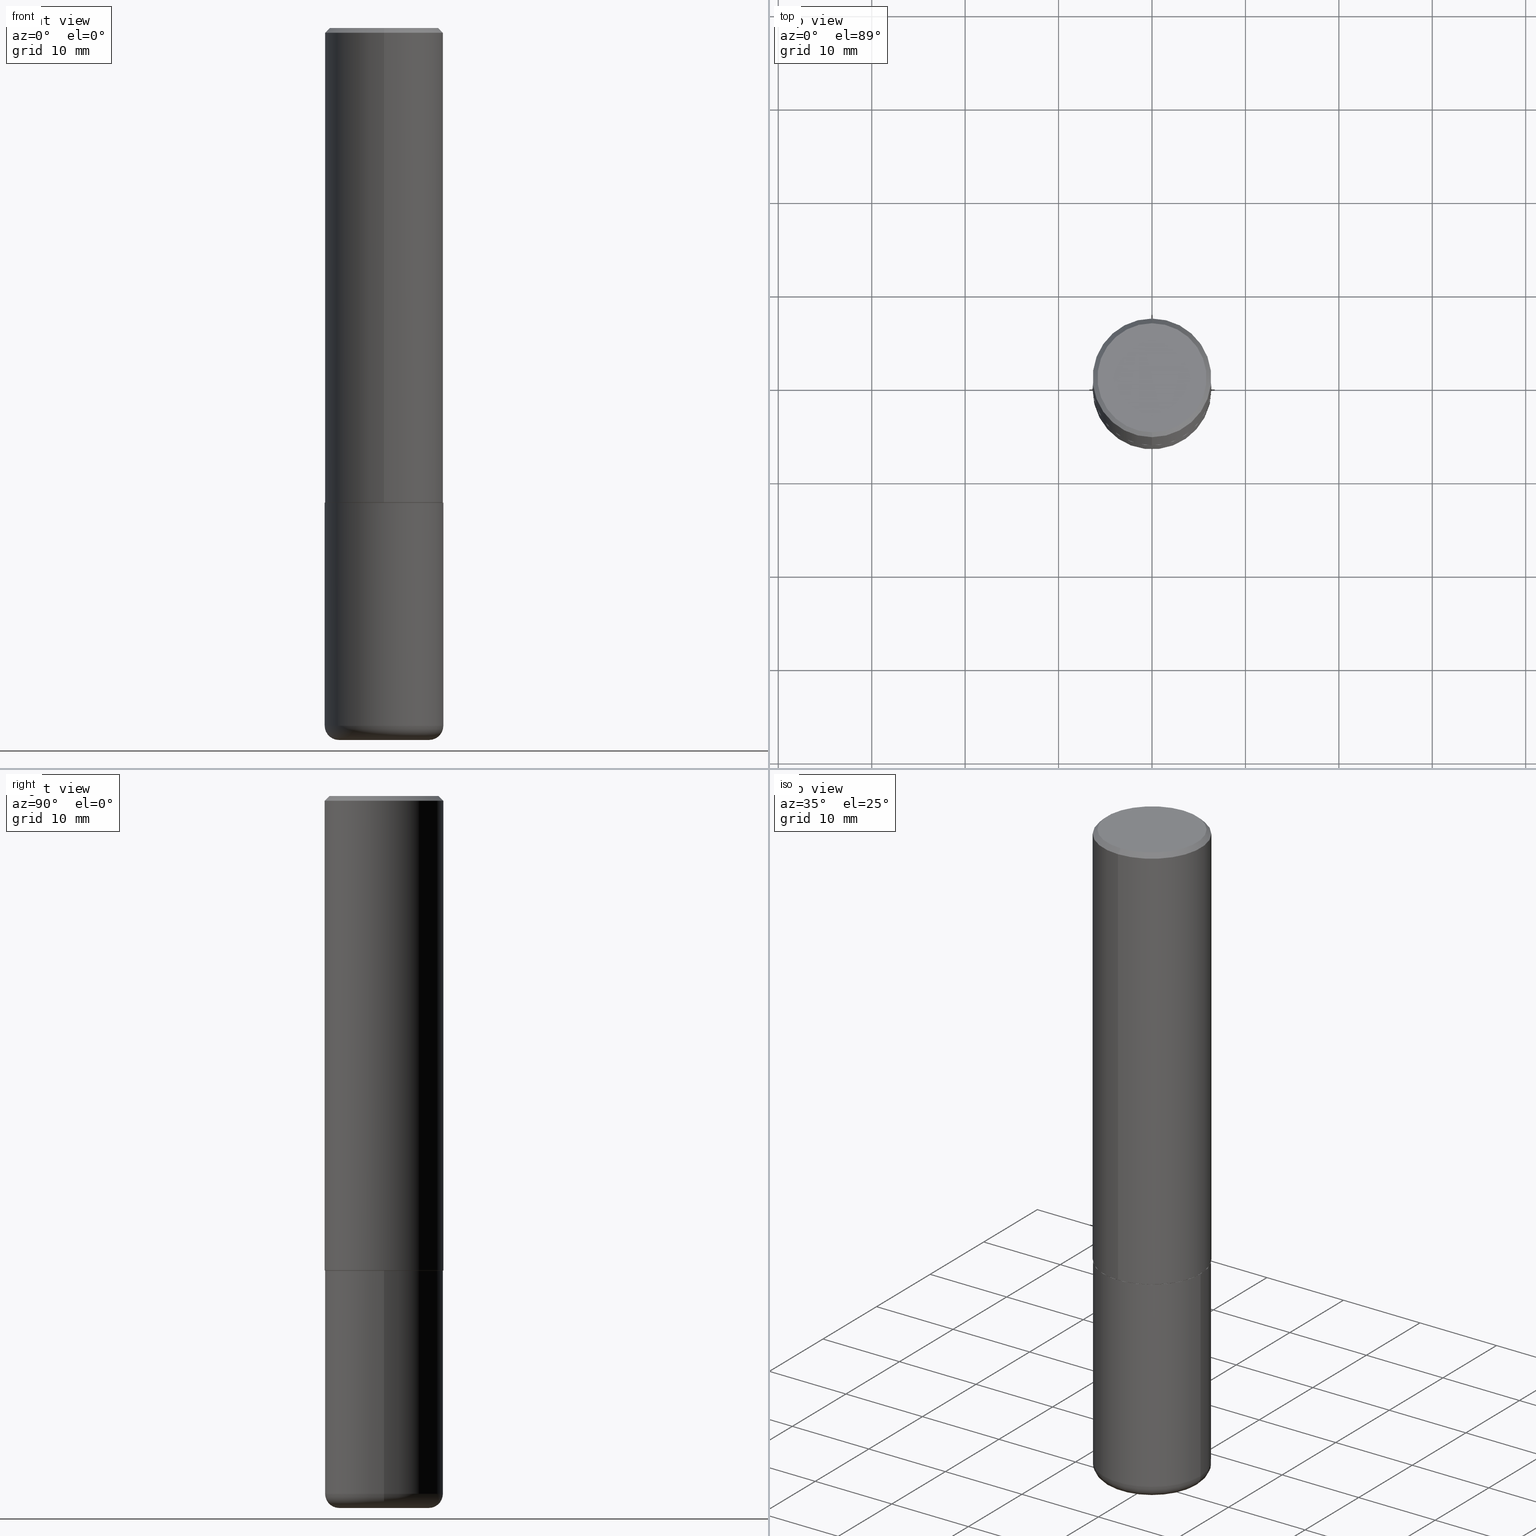
[diagram: canonical four-view strip — front | top / right | iso, engineering-drawing reading convention]
A machine part, canonical four-view strip (front | top / right | iso — engineering-drawing reading convention). The complete STEP part file that produces these views, byte-faithful:
ISO-10303-21;
HEADER;
FILE_DESCRIPTION (( 'STEP AP203' ),
    '1' );
FILE_NAME ('36116.STEP',
    '2024-03-01T15:44:47',
    ( '' ),
    ( '' ),
    'SwSTEP 2.0',
    'SolidWorks 2023',
    '' );
FILE_SCHEMA (( 'CONFIG_CONTROL_DESIGN' ));
ENDSEC;

DATA;
#1 = COORDINATED_UNIVERSAL_TIME_OFFSET ( 5, 0, .BEHIND. ) ;
#2 = EDGE_LOOP ( 'NONE', ( #158, #3, #215, #124 ) ) ;
#3 = ORIENTED_EDGE ( 'NONE', *, *, #235, .T. ) ;
#4 = APPROVAL_PERSON_ORGANIZATION ( #415, #118, #35 ) ;
#5 = DIMENSIONAL_EXPONENTS ( 1.000000000000000000, 0.000000000000000000, 0.000000000000000000, 0.000000000000000000, 0.000000000000000000, 0.000000000000000000, 0.000000000000000000 ) ;
#6 = PERSON_AND_ORGANIZATION ( #122, #20 ) ;
#7 = LINE ( 'NONE', #365, #414 ) ;
#8 = LINE ( 'NONE', #391, #217 ) ;
#9 = DIRECTION ( 'NONE',  ( -2.446553427429748076E-29, 3.489928099488054752E-15, 1.000000000000000000 ) ) ;
#10 = PRODUCT ( '36116', '36116', '', ( #256 ) ) ;
#11 = AXIS2_PLACEMENT_3D ( 'NONE', #164, #330, #418 ) ;
#12 = APPROVAL_PERSON_ORGANIZATION ( #6, #108, #159 ) ;
#13 = EDGE_CURVE ( 'NONE', #190, #185, #254, .T. ) ;
#14 = CARTESIAN_POINT ( 'NONE',  ( 4.893106854859495591E-29, -6.979856198976108714E-15, -2.000000000000000000 ) ) ;
#15 = MANIFOLD_SOLID_BREP ( 'Body-Move/Copy2[2]', #169 ) ;
#16 = DIRECTION ( 'NONE',  ( -6.982962677686265922E-15, -1.000000000000000000, 3.483106191921935554E-15 ) ) ;
#17 = CARTESIAN_POINT ( 'NONE',  ( 0.2500000000000000000, -8.728703347107858632E-15, -2.000000000000000444 ) ) ;
#18 = EDGE_CURVE ( 'NONE', #29, #341, #388, .T. ) ;
#19 = AXIS2_PLACEMENT_3D ( 'NONE', #156, #94, #55 ) ;
#20 = ORGANIZATION ( 'UNSPECIFIED', 'UNSPECIFIED', '' ) ;
#21 = CARTESIAN_POINT ( 'NONE',  ( -1.738757706743831162E-15, -0.2490000000000069658, -1.999999999999999112 ) ) ;
#22 = CARTESIAN_POINT ( 'NONE',  ( -1.715124499442882299E-15, -0.2500000000000000555, -0.01999999999999918510 ) ) ;
#23 = EDGE_LOOP ( 'NONE', ( #88, #34, #89, #257 ) ) ;
#24 = EDGE_LOOP ( 'NONE', ( #66, #97, #322, #54 ) ) ;
#25 = CARTESIAN_POINT ( 'NONE',  ( 7.189678290184302760E-29, -1.026495513619885119E-14, -2.940000000000000835 ) ) ;
#26 = CC_DESIGN_PERSON_AND_ORGANIZATION_ASSIGNMENT ( #106, #353, ( #270 ) ) ;
#27 = CIRCLE ( 'NONE', #238, 0.2500000000000002220 ) ;
#28 = FACE_OUTER_BOUND ( 'NONE', #95, .T. ) ;
#29 = VERTEX_POINT ( 'NONE', #129 ) ;
#30 = ORIENTED_EDGE ( 'NONE', *, *, #170, .T. ) ;
#31 = DIRECTION ( 'NONE',  ( 2.446553427429748076E-29, -3.489928099488054752E-15, -1.000000000000000000 ) ) ;
#32 = PRODUCT_RELATED_PRODUCT_CATEGORY ( 'detail', '', ( #10 ) ) ;
#33 = VERTEX_POINT ( 'NONE', #72 ) ;
#34 = ORIENTED_EDGE ( 'NONE', *, *, #228, .T. ) ;
#35 = APPROVAL_ROLE ( '' ) ;
#36 = AXIS2_PLACEMENT_3D ( 'NONE', #173, #385, #168 ) ;
#37 = DIRECTION ( 'NONE',  ( -1.000000000000000000, 6.982962677686265922E-15, -4.876176775795935793E-29 ) ) ;
#38 = DIRECTION ( 'NONE',  ( 1.000000000000000000, -6.982962677686270655E-15, 0.000000000000000000 ) ) ;
#39 = PERSON_AND_ORGANIZATION ( #122, #20 ) ;
#40 = CARTESIAN_POINT ( 'NONE',  ( 7.336406418555409790E-29, -1.047444401652943635E-14, -3.000000000000000444 ) ) ;
#41 = EDGE_CURVE ( 'NONE', #321, #192, #142, .T. ) ;
#42 = AXIS2_PLACEMENT_3D ( 'NONE', #223, #69, #140 ) ;
#43 = AXIS2_PLACEMENT_3D ( 'NONE', #25, #184, #58 ) ;
#44 = PLANE ( 'NONE',  #36 ) ;
#45 = DIRECTION ( 'NONE',  ( 2.438088387897960049E-29, -3.491481338843145188E-15, -1.000000000000000000 ) ) ;
#46 = CIRCLE ( 'NONE', #349, 0.2500000000000002220 ) ;
#47 = CARTESIAN_POINT ( 'NONE',  ( 0.000000000000000000, 0.000000000000000000, 0.000000000000000000 ) ) ;
#48 = FACE_OUTER_BOUND ( 'NONE', #138, .T. ) ;
#49 = EDGE_CURVE ( 'NONE', #377, #185, #8, .T. ) ;
#50 = VERTEX_POINT ( 'NONE', #396 ) ;
#51 = CARTESIAN_POINT ( 'NONE',  ( 0.000000000000000000, 0.000000000000000000, 0.000000000000000000 ) ) ;
#52 = AXIS2_PLACEMENT_3D ( 'NONE', #204, #116, #16 ) ;
#53 = CARTESIAN_POINT ( 'NONE',  ( 4.890660301432066520E-29, -6.976366270876620972E-15, -1.999000000000000110 ) ) ;
#54 = ORIENTED_EDGE ( 'NONE', *, *, #170, .F. ) ;
#55 = DIRECTION ( 'NONE',  ( -6.982962677686265133E-15, -1.000000000000000000, 3.291383124896702687E-15 ) ) ;
#56 = EDGE_LOOP ( 'NONE', ( #265, #335, #411, #162 ) ) ;
#57 = EDGE_CURVE ( 'NONE', #282, #125, #109, .T. ) ;
#58 = DIRECTION ( 'NONE',  ( 1.000000000000000000, -6.982962677686269077E-15, 0.000000000000000000 ) ) ;
#59 = ORIENTED_EDGE ( 'NONE', *, *, #409, .F. ) ;
#60 = CARTESIAN_POINT ( 'NONE',  ( 1.776356839400276497E-15, 0.2499999999999933109, -1.999000000000000998 ) ) ;
#61 = CIRCLE ( 'NONE', #379, 0.2500000000000000000 ) ;
#62 = CC_DESIGN_APPROVAL ( #118, ( #270 ) ) ;
#63 = UNCERTAINTY_MEASURE_WITH_UNIT (LENGTH_MEASURE( 1.000000000000000082E-05 ), #352, 'distance_accuracy_value', 'NONE');
#64 = EDGE_CURVE ( 'NONE', #96, #190, #7, .T. ) ;
#65 = ORIENTED_EDGE ( 'NONE', *, *, #13, .F. ) ;
#66 = ORIENTED_EDGE ( 'NONE', *, *, #235, .F. ) ;
#67 = CARTESIAN_POINT ( 'NONE',  ( 1.745740669421566875E-15, 0.2499999999999999167, -0.02000000000000092676 ) ) ;
#68 = AXIS2_PLACEMENT_3D ( 'NONE', #398, #209, #368 ) ;
#69 = DIRECTION ( 'NONE',  ( -2.446553427429748076E-29, 3.489928099488054752E-15, 1.000000000000000000 ) ) ;
#70 = ADVANCED_FACE ( 'NONE', ( #197 ), #203, .T. ) ;
#71 = CALENDAR_DATE ( 2024, 1, 3 ) ;
#72 = CARTESIAN_POINT ( 'NONE',  ( 1.772804125721499659E-15, 0.2489999999999930325, -2.000000000000000888 ) ) ;
#73 = PERSON_AND_ORGANIZATION ( #122, #20 ) ;
#74 = DIRECTION ( 'NONE',  ( -2.445468806185136597E-29, 3.491481338843145583E-15, 1.000000000000000000 ) ) ;
#75 = CIRCLE ( 'NONE', #271, 0.2500000000000000000 ) ;
#76 = CARTESIAN_POINT ( 'NONE',  ( -1.745740669421567467E-15, -0.2500000000000001110, 8.724820248720141809E-16 ) ) ;
#77 = FACE_OUTER_BOUND ( 'NONE', #93, .T. ) ;
#78 = PRODUCT_DEFINITION_SHAPE ( 'NONE', 'NONE',  #270 ) ;
#79 = LINE ( 'NONE', #275, #186 ) ;
#80 = CARTESIAN_POINT ( 'NONE',  ( 4.893106854859495591E-29, -6.979856198976108714E-15, -2.000000000000000000 ) ) ;
#81 = CARTESIAN_POINT ( 'NONE',  ( 4.890937612370273754E-29, -6.982962677686291954E-15, -2.000000000000000444 ) ) ;
#82 = CIRCLE ( 'NONE', #110, 0.2489999999999999991 ) ;
#83 = LOCAL_TIME ( 10, 44, 47.00000000000000000, #196 ) ;
#84 =( NAMED_UNIT ( * ) SI_UNIT ( $, .STERADIAN. ) SOLID_ANGLE_UNIT ( ) );
#85 = ADVANCED_FACE ( 'NONE', ( #327 ), #44, .F. ) ;
#86 = DIRECTION ( 'NONE',  ( -6.982962677686265133E-15, -1.000000000000000000, 3.291383124896702687E-15 ) ) ;
#87 = DIRECTION ( 'NONE',  ( -1.000000000000000000, 7.105427357600993970E-15, 0.000000000000000000 ) ) ;
#88 = ORIENTED_EDGE ( 'NONE', *, *, #222, .T. ) ;
#89 = ORIENTED_EDGE ( 'NONE', *, *, #103, .F. ) ;
#90 = EDGE_CURVE ( 'NONE', #321, #50, #354, .T. ) ;
#91 = DIRECTION ( 'NONE',  ( -6.982962677686265922E-15, -1.000000000000000000, 3.489928099488054752E-15 ) ) ;
#92 = AXIS2_PLACEMENT_3D ( 'NONE', #211, #236, #144 ) ;
#93 = EDGE_LOOP ( 'NONE', ( #383, #161 ) ) ;
#94 = DIRECTION ( 'NONE',  ( -2.446553427429748076E-29, 3.489928099488054752E-15, 1.000000000000000000 ) ) ;
#95 = EDGE_LOOP ( 'NONE', ( #126, #244, #189, #317 ) ) ;
#96 = VERTEX_POINT ( 'NONE', #105 ) ;
#97 = ORIENTED_EDGE ( 'NONE', *, *, #334, .T. ) ;
#98 = PERSON_AND_ORGANIZATION ( #122, #20 ) ;
#99 = DIRECTION ( 'NONE',  ( 4.937700262164541731E-15, 0.7071067811865442421, -0.7071067811865507924 ) ) ;
#100 = DIRECTION ( 'NONE',  ( -2.445468806185136597E-29, 3.491481338843145583E-15, 1.000000000000000000 ) ) ;
#101 = AXIS2_PLACEMENT_3D ( 'NONE', #313, #311, #86 ) ;
#102 =( GEOMETRIC_REPRESENTATION_CONTEXT ( 3 ) GLOBAL_UNCERTAINTY_ASSIGNED_CONTEXT ( ( #63 ) ) GLOBAL_UNIT_ASSIGNED_CONTEXT ( ( #352, #285, #84 ) ) REPRESENTATION_CONTEXT ( 'NONE', 'WORKASPACE' ) );
#103 = EDGE_CURVE ( 'NONE', #282, #381, #27, .T. ) ;
#104 = DATE_AND_TIME ( #198, #83 ) ;
#105 = CARTESIAN_POINT ( 'NONE',  ( 0.2500000000000000000, -1.201069580562041945E-14, -2.940000000000000835 ) ) ;
#106 = PERSON_AND_ORGANIZATION ( #122, #20 ) ;
#107 = DIRECTION ( 'NONE',  ( -2.446553427429748076E-29, 3.489928099488054752E-15, 1.000000000000000000 ) ) ;
#108 = APPROVAL ( #393, 'UNSPECIFIED' ) ;
#109 = LINE ( 'NONE', #76, #364 ) ;
#110 = AXIS2_PLACEMENT_3D ( 'NONE', #14, #9, #206 ) ;
#111 = DIRECTION ( 'NONE',  ( -6.982962677686266711E-15, -1.000000000000000000, 3.489928099488055146E-15 ) ) ;
#112 = CYLINDRICAL_SURFACE ( 'NONE', #316, 0.2500000000000001110 ) ;
#113 = DIRECTION ( 'NONE',  ( -2.445468806185136597E-29, 3.491481338843145583E-15, 1.000000000000000000 ) ) ;
#114 = AXIS2_PLACEMENT_3D ( 'NONE', #363, #74, #272 ) ;
#115 = PRODUCT_DEFINITION_FORMATION_WITH_SPECIFIED_SOURCE ( 'ANY', '', #10, .NOT_KNOWN. ) ;
#116 = DIRECTION ( 'NONE',  ( -2.446553427429748076E-29, 3.489928099488054752E-15, 1.000000000000000000 ) ) ;
#117 = CARTESIAN_POINT ( 'NONE',  ( 4.893106854859509639E-31, -6.979856198976127351E-17, -0.02000000000000005593 ) ) ;
#118 = APPROVAL ( #390, 'UNSPECIFIED' ) ;
#119 = CONICAL_SURFACE ( 'NONE', #202, 0.2500000000000000000, 0.7853981633974471688 ) ;
#120 = CC_DESIGN_APPROVAL ( #108, ( #350 ) ) ;
#121 = FACE_OUTER_BOUND ( 'NONE', #23, .T. ) ;
#122 = PERSON ( 'UNSPECIFIED', 'UNSPECIFIED', 'UNSPECIFIED', ('UNSPECIFIED'), ('UNSPECIFIED'), ('UNSPECIFIED') ) ;
#123 = EDGE_CURVE ( 'NONE', #377, #96, #224, .T. ) ;
#124 = ORIENTED_EDGE ( 'NONE', *, *, #57, .F. ) ;
#125 = VERTEX_POINT ( 'NONE', #132 ) ;
#126 = ORIENTED_EDGE ( 'NONE', *, *, #18, .T. ) ;
#127 = ORIENTED_EDGE ( 'NONE', *, *, #64, .F. ) ;
#128 = CIRCLE ( 'NONE', #43, 0.2500000000000000555 ) ;
#129 = CARTESIAN_POINT ( 'NONE',  ( 0.1899999999999999745, -1.180120692528982640E-14, -3.000000000000000444 ) ) ;
#130 = ORIENTED_EDGE ( 'NONE', *, *, #409, .T. ) ;
#131 = SECURITY_CLASSIFICATION_LEVEL ( 'unclassified' ) ;
#132 = CARTESIAN_POINT ( 'NONE',  ( -1.715124499442882299E-15, -0.2500000000000000555, -0.01999999999999918510 ) ) ;
#133 = EDGE_CURVE ( 'NONE', #29, #96, #291, .T. ) ;
#134 = DATE_AND_TIME ( #417, #247 ) ;
#135 = CARTESIAN_POINT ( 'NONE',  ( 7.336406418555409790E-29, -1.047444401652943635E-14, -3.000000000000000444 ) ) ;
#136 = AXIS2_PLACEMENT_3D ( 'NONE', #135, #100, #172 ) ;
#137 = DIRECTION ( 'NONE',  ( 6.982962677686265922E-15, 1.000000000000000000, -3.489928099488054357E-15 ) ) ;
#138 = EDGE_LOOP ( 'NONE', ( #288, #152, #333, #242 ) ) ;
#139 = ADVANCED_FACE ( 'NONE', ( #295 ), #361, .F. ) ;
#140 = DIRECTION ( 'NONE',  ( -6.982962677686265922E-15, -1.000000000000000000, 3.489928099488054752E-15 ) ) ;
#141 = DIRECTION ( 'NONE',  ( -6.982962677686266711E-15, -1.000000000000000000, 3.278217592397113101E-15 ) ) ;
#142 = CIRCLE ( 'NONE', #42, 0.2299999999999998712 ) ;
#143 = CARTESIAN_POINT ( 'NONE',  ( 1.776356839400251254E-15, 0.2500000000000001110, -8.724820248720141809E-16 ) ) ;
#144 = DIRECTION ( 'NONE',  ( 1.000000000000000000, -6.982962677686266711E-15, 4.876176775795935793E-29 ) ) ;
#145 = EDGE_CURVE ( 'NONE', #125, #50, #75, .T. ) ;
#146 = CARTESIAN_POINT ( 'NONE',  ( 7.189678290184301639E-29, -1.026495513619884961E-14, -2.940000000000000391 ) ) ;
#147 = CLOSED_SHELL ( 'NONE', ( #302, #403, #249, #191, #312, #70 ) ) ;
#148 = EDGE_LOOP ( 'NONE', ( #380, #227, #416, #382 ) ) ;
#149 = DIRECTION ( 'NONE',  ( 1.000000000000000000, -6.982962677686264344E-15, 4.883557194083112340E-29 ) ) ;
#150 = EDGE_LOOP ( 'NONE', ( #218, #130 ) ) ;
#151 = EDGE_LOOP ( 'NONE', ( #346, #212 ) ) ;
#152 = ORIENTED_EDGE ( 'NONE', *, *, #163, .T. ) ;
#153 = CONICAL_SURFACE ( 'NONE', #19, 0.2489999999999999991, 0.7853981633976704346 ) ;
#154 = LENGTH_MEASURE_WITH_UNIT ( LENGTH_MEASURE( 0.02539999999999999897 ), #375 );
#155 = APPROVAL ( #384, 'UNSPECIFIED' ) ;
#156 = CARTESIAN_POINT ( 'NONE',  ( 4.893106854859495591E-29, -6.979856198976108714E-15, -2.000000000000000000 ) ) ;
#157 = DESIGN_CONTEXT ( 'detailed design', #293, 'design' ) ;
#158 = ORIENTED_EDGE ( 'NONE', *, *, #103, .T. ) ;
#159 = APPROVAL_ROLE ( '' ) ;
#160 = AXIS2_PLACEMENT_3D ( 'NONE', #146, #402, #149 ) ;
#161 = ORIENTED_EDGE ( 'NONE', *, *, #281, .T. ) ;
#162 = ORIENTED_EDGE ( 'NONE', *, *, #281, .F. ) ;
#163 = EDGE_CURVE ( 'NONE', #341, #29, #182, .T. ) ;
#164 = CARTESIAN_POINT ( 'NONE',  ( 7.189678290184302760E-29, -1.026495513619885119E-14, -2.940000000000000835 ) ) ;
#165 = PERSON_AND_ORGANIZATION_ROLE ( 'design_supplier' ) ;
#166 = DIRECTION ( 'NONE',  ( -2.446553427429748076E-29, 3.489928099488054752E-15, 1.000000000000000000 ) ) ;
#167 = PERSON_AND_ORGANIZATION_ROLE ( 'creator' ) ;
#168 = DIRECTION ( 'NONE',  ( -6.982962677686265922E-15, -1.000000000000000000, 3.489928099488054357E-15 ) ) ;
#169 = CLOSED_SHELL ( 'NONE', ( #355, #240, #328, #339, #287, #345, #85, #139 ) ) ;
#170 = EDGE_CURVE ( 'NONE', #50, #125, #194, .T. ) ;
#171 = PERSON_AND_ORGANIZATION_ROLE ( 'classification_officer' ) ;
#172 = DIRECTION ( 'NONE',  ( 1.000000000000000000, -6.982962677686261977E-15, 0.000000000000000000 ) ) ;
#173 = CARTESIAN_POINT ( 'NONE',  ( 4.893106854859495591E-29, -6.979856198976108714E-15, -2.000000000000000000 ) ) ;
#174 = CARTESIAN_POINT ( 'NONE',  ( -0.2500000000000000000, -6.847602067542320320E-15, -2.000000000000000444 ) ) ;
#175 = TOROIDAL_SURFACE ( 'NONE', #160, 0.1899999999999999745, 0.05999999999999997696 ) ;
#176 = CIRCLE ( 'NONE', #225, 0.05999999999999997696 ) ;
#177 = DIRECTION ( 'NONE',  ( 1.000000000000000000, -6.982962677686266711E-15, 4.876176775795935793E-29 ) ) ;
#178 = EDGE_LOOP ( 'NONE', ( #413, #250, #65, #127 ) ) ;
#179 = CARTESIAN_POINT ( 'NONE',  ( -1.738757706743831162E-15, -0.2490000000000069658, -1.999999999999999112 ) ) ;
#180 = DIRECTION ( 'NONE',  ( -2.445468806185136597E-29, 3.491481338843145583E-15, 1.000000000000000000 ) ) ;
#181 = CC_DESIGN_PERSON_AND_ORGANIZATION_ASSIGNMENT ( #298, #171, ( #350 ) ) ;
#182 = CIRCLE ( 'NONE', #114, 0.1899999999999999745 ) ;
#183 = LINE ( 'NONE', #21, #308 ) ;
#184 = DIRECTION ( 'NONE',  ( -2.445468806185136597E-29, 3.491481338843145583E-15, 1.000000000000000000 ) ) ;
#185 = VERTEX_POINT ( 'NONE', #174 ) ;
#186 = VECTOR ( 'NONE', #401, 39.37007874015748854 ) ;
#187 = DIRECTION ( 'NONE',  ( 1.000000000000000000, 0.000000000000000000, 0.000000000000000000 ) ) ;
#188 = CC_DESIGN_PERSON_AND_ORGANIZATION_ASSIGNMENT ( #251, #262, ( #10 ) ) ;
#189 = ORIENTED_EDGE ( 'NONE', *, *, #374, .F. ) ;
#190 = VERTEX_POINT ( 'NONE', #17 ) ;
#191 = ADVANCED_FACE ( 'NONE', ( #307 ), #336, .T. ) ;
#192 = VERTEX_POINT ( 'NONE', #305 ) ;
#193 = APPLICATION_PROTOCOL_DEFINITION ( 'international standard', 'config_control_design', 1994, #293 ) ;
#194 = CIRCLE ( 'NONE', #52, 0.2500000000000000000 ) ;
#195 = CARTESIAN_POINT ( 'NONE',  ( 4.890660301432066520E-29, -6.976366270876620972E-15, -1.999000000000000110 ) ) ;
#196 = COORDINATED_UNIVERSAL_TIME_OFFSET ( 5, 0, .BEHIND. ) ;
#197 = FACE_OUTER_BOUND ( 'NONE', #310, .T. ) ;
#198 = CALENDAR_DATE ( 2024, 1, 3 ) ;
#199 = DIRECTION ( 'NONE',  ( 2.438088387897960049E-29, -3.491481338843145188E-15, -1.000000000000000000 ) ) ;
#200 = SHAPE_DEFINITION_REPRESENTATION ( #78, #366 ) ;
#201 = DIRECTION ( 'NONE',  ( -2.445468806185136877E-29, 3.491481338843145188E-15, 1.000000000000000000 ) ) ;
#202 = AXIS2_PLACEMENT_3D ( 'NONE', #117, #373, #343 ) ;
#203 = PLANE ( 'NONE',  #207 ) ;
#204 = CARTESIAN_POINT ( 'NONE',  ( 4.893106854859509639E-31, -6.979856198976127351E-17, -0.02000000000000005593 ) ) ;
#205 = EDGE_CURVE ( 'NONE', #33, #314, #82, .T. ) ;
#206 = DIRECTION ( 'NONE',  ( -6.982962677686265133E-15, -1.000000000000000000, 3.291383124896702687E-15 ) ) ;
#207 = AXIS2_PLACEMENT_3D ( 'NONE', #40, #199, #37 ) ;
#208 = CC_DESIGN_APPROVAL ( #155, ( #115 ) ) ;
#209 = DIRECTION ( 'NONE',  ( -2.446553427429748076E-29, 3.489928099488054752E-15, 1.000000000000000000 ) ) ;
#210 = FACE_OUTER_BOUND ( 'NONE', #178, .T. ) ;
#211 = CARTESIAN_POINT ( 'NONE',  ( 0.000000000000000000, 0.000000000000000000, 0.000000000000000000 ) ) ;
#212 = ORIENTED_EDGE ( 'NONE', *, *, #205, .F. ) ;
#213 = DIRECTION ( 'NONE',  ( -4.937700262165644559E-15, -0.7071067811867021158, 0.7071067811863929187 ) ) ;
#214 = ORIENTED_EDGE ( 'NONE', *, *, #18, .F. ) ;
#215 = ORIENTED_EDGE ( 'NONE', *, *, #145, .F. ) ;
#216 = CC_DESIGN_DATE_AND_TIME_ASSIGNMENT ( #231, #360, ( #350 ) ) ;
#217 = VECTOR ( 'NONE', #201, 39.37007874015748143 ) ;
#218 = ORIENTED_EDGE ( 'NONE', *, *, #41, .T. ) ;
#219 = CARTESIAN_POINT ( 'NONE',  ( -0.1899999999999999745, -8.914923938254659640E-15, -2.940000000000000391 ) ) ;
#220 = ORIENTED_EDGE ( 'NONE', *, *, #163, .F. ) ;
#221 = CARTESIAN_POINT ( 'NONE',  ( -2.915340090494939621E-45, 4.158636875578508875E-31, 1.191611046711405985E-16 ) ) ;
#222 = EDGE_CURVE ( 'NONE', #314, #33, #337, .T. ) ;
#223 = CARTESIAN_POINT ( 'NONE',  ( -2.915340090494939621E-45, 4.158636875578508875E-31, 1.191611046711405985E-16 ) ) ;
#224 = CIRCLE ( 'NONE', #11, 0.2500000000000000555 ) ;
#225 = AXIS2_PLACEMENT_3D ( 'NONE', #219, #280, #87 ) ;
#226 = APPROVAL_ROLE ( '' ) ;
#227 = ORIENTED_EDGE ( 'NONE', *, *, #205, .T. ) ;
#228 = EDGE_CURVE ( 'NONE', #33, #381, #79, .T. ) ;
#229 = APPROVAL_DATE_TIME ( #386, #108 ) ;
#230 = DIRECTION ( 'NONE',  ( -6.982962677686265922E-15, -1.000000000000000000, 3.483106191921935554E-15 ) ) ;
#231 = DATE_AND_TIME ( #71, #255 ) ;
#232 = AXIS2_PLACEMENT_3D ( 'NONE', #233, #259, #301 ) ;
#233 = CARTESIAN_POINT ( 'NONE',  ( 4.890937612370273754E-29, -6.982962677686291954E-15, -2.000000000000000444 ) ) ;
#234 = DIRECTION ( 'NONE',  ( -2.446553427429748076E-29, 3.489928099488054357E-15, 1.000000000000000000 ) ) ;
#235 = EDGE_CURVE ( 'NONE', #381, #50, #338, .T. ) ;
#236 = DIRECTION ( 'NONE',  ( -2.445468806185136597E-29, 3.491481338843145583E-15, 1.000000000000000000 ) ) ;
#237 = CYLINDRICAL_SURFACE ( 'NONE', #299, 0.2500000000000000000 ) ;
#238 = AXIS2_PLACEMENT_3D ( 'NONE', #195, #166, #394 ) ;
#239 = APPROVAL_PERSON_ORGANIZATION ( #98, #155, #226 ) ;
#240 = ADVANCED_FACE ( 'NONE', ( #243 ), #342, .T. ) ;
#241 = DIRECTION ( 'NONE',  ( -6.982962677686265133E-15, -1.000000000000000000, 3.291383124896702687E-15 ) ) ;
#242 = ORIENTED_EDGE ( 'NONE', *, *, #123, .F. ) ;
#243 = FACE_OUTER_BOUND ( 'NONE', #2, .T. ) ;
#244 = ORIENTED_EDGE ( 'NONE', *, *, #392, .T. ) ;
#245 = FACE_OUTER_BOUND ( 'NONE', #148, .T. ) ;
#246 = AXIS2_PLACEMENT_3D ( 'NONE', #306, #45, #304 ) ;
#247 = LOCAL_TIME ( 10, 44, 47.00000000000000000, #395 ) ;
#248 = CARTESIAN_POINT ( 'NONE',  ( 7.189678290184301639E-29, -1.026495513619884961E-14, -2.940000000000000391 ) ) ;
#249 = ADVANCED_FACE ( 'NONE', ( #77 ), #276, .F. ) ;
#250 = ORIENTED_EDGE ( 'NONE', *, *, #49, .T. ) ;
#251 = PERSON_AND_ORGANIZATION ( #122, #20 ) ;
#252 = ORIENTED_EDGE ( 'NONE', *, *, #145, .T. ) ;
#253 = APPLICATION_PROTOCOL_DEFINITION ( 'international standard', 'config_control_design', 1994, #273 ) ;
#254 = CIRCLE ( 'NONE', #232, 0.2500000000000000000 ) ;
#255 = LOCAL_TIME ( 10, 44, 47.00000000000000000, #1 ) ;
#256 = MECHANICAL_CONTEXT ( 'NONE', #273, 'mechanical' ) ;
#257 = ORIENTED_EDGE ( 'NONE', *, *, #369, .F. ) ;
#258 = COORDINATED_UNIVERSAL_TIME_OFFSET ( 5, 0, .BEHIND. ) ;
#259 = DIRECTION ( 'NONE',  ( -2.445468806185136597E-29, 3.491481338843145583E-15, 1.000000000000000000 ) ) ;
#260 = CALENDAR_DATE ( 2024, 1, 3 ) ;
#261 = CARTESIAN_POINT ( 'NONE',  ( 0.1899999999999999745, -1.159171804495923808E-14, -2.940000000000000391 ) ) ;
#262 = PERSON_AND_ORGANIZATION_ROLE ( 'design_owner' ) ;
#263 = AXIS2_PLACEMENT_3D ( 'NONE', #261, #387, #38 ) ;
#264 = TOROIDAL_SURFACE ( 'NONE', #284, 0.1899999999999999745, 0.05999999999999997696 ) ;
#265 = ORIENTED_EDGE ( 'NONE', *, *, #49, .F. ) ;
#266 = CC_DESIGN_PERSON_AND_ORGANIZATION_ASSIGNMENT ( #39, #167, ( #115 ) ) ;
#267 = CARTESIAN_POINT ( 'NONE',  ( 4.893106854859509639E-31, -6.979856198976127351E-17, -0.02000000000000005593 ) ) ;
#268 = DATE_AND_TIME ( #324, #389 ) ;
#269 = ORIENTED_EDGE ( 'NONE', *, *, #90, .F. ) ;
#270 = PRODUCT_DEFINITION ( 'UNKNOWN', '', #115, #157 ) ;
#271 = AXIS2_PLACEMENT_3D ( 'NONE', #267, #107, #230 ) ;
#272 = DIRECTION ( 'NONE',  ( 1.000000000000000000, -6.982962677686261977E-15, 0.000000000000000000 ) ) ;
#273 = APPLICATION_CONTEXT ( 'configuration controlled 3d designs of mechanical parts and assemblies' ) ;
#274 = DIRECTION ( 'NONE',  ( 1.000000000000000000, -6.982962677686266711E-15, 0.000000000000000000 ) ) ;
#275 = CARTESIAN_POINT ( 'NONE',  ( 1.769251412042698169E-15, 0.2489999999999930325, -2.000000000000000888 ) ) ;
#276 = PLANE ( 'NONE',  #246 ) ;
#277 = AXIS2_PLACEMENT_3D ( 'NONE', #332, #300, #137 ) ;
#278 = AXIS2_PLACEMENT_3D ( 'NONE', #221, #347, #91 ) ;
#279 = CARTESIAN_POINT ( 'NONE',  ( 1.675911042644703577E-15, 0.2299999999999998712, -6.835223582111114461E-16 ) ) ;
#280 = DIRECTION ( 'NONE',  ( 7.105427357601001859E-15, 1.000000000000000000, -3.491481338843145583E-15 ) ) ;
#281 = EDGE_CURVE ( 'NONE', #185, #190, #61, .T. ) ;
#282 = VERTEX_POINT ( 'NONE', #399 ) ;
#283 = CONICAL_SURFACE ( 'NONE', #397, 0.2500000000000000000, 0.7853981633974471688 ) ;
#284 = AXIS2_PLACEMENT_3D ( 'NONE', #248, #412, #405 ) ;
#285 =( NAMED_UNIT ( * ) PLANE_ANGLE_UNIT ( ) SI_UNIT ( $, .RADIAN. ) );
#286 = DIRECTION ( 'NONE',  ( 6.982962677686265922E-15, 1.000000000000000000, -3.483106191921935554E-15 ) ) ;
#287 = ADVANCED_FACE ( 'NONE', ( #372 ), #112, .T. ) ;
#288 = ORIENTED_EDGE ( 'NONE', *, *, #392, .F. ) ;
#289 = EDGE_LOOP ( 'NONE', ( #59, #351, #252, #269 ) ) ;
#290 = DIRECTION ( 'NONE',  ( -4.851104656540957964E-15, -0.7071067811865491270, -0.7071067811865459074 ) ) ;
#291 = CIRCLE ( 'NONE', #263, 0.05999999999999997696 ) ;
#292 = LOCAL_TIME ( 10, 44, 47.00000000000000000, #362 ) ;
#293 = APPLICATION_CONTEXT ( 'configuration controlled 3d designs of mechanical parts and assemblies' ) ;
#294 = DIRECTION ( 'NONE',  ( -2.445468806185136877E-29, 3.491481338843145188E-15, 1.000000000000000000 ) ) ;
#295 = FACE_OUTER_BOUND ( 'NONE', #150, .T. ) ;
#296 = CC_DESIGN_PERSON_AND_ORGANIZATION_ASSIGNMENT ( #73, #165, ( #115 ) ) ;
#297 = MANIFOLD_SOLID_BREP ( 'Body-Move/Copy2[1]', #147 ) ;
#298 = PERSON_AND_ORGANIZATION ( #122, #20 ) ;
#299 = AXIS2_PLACEMENT_3D ( 'NONE', #51, #180, #177 ) ;
#300 = DIRECTION ( 'NONE',  ( 2.446553427429747796E-29, -3.489928099488054357E-15, -1.000000000000000000 ) ) ;
#301 = DIRECTION ( 'NONE',  ( 1.000000000000000000, -6.982962677686266711E-15, 0.000000000000000000 ) ) ;
#302 = ADVANCED_FACE ( 'NONE', ( #210 ), #237, .T. ) ;
#303 = DIRECTION ( 'NONE',  ( -2.446553427429748076E-29, 3.489928099488054752E-15, 1.000000000000000000 ) ) ;
#304 = DIRECTION ( 'NONE',  ( -1.000000000000000000, 6.982962677686265922E-15, -4.876176775795935793E-29 ) ) ;
#305 = CARTESIAN_POINT ( 'NONE',  ( -1.646519519465166573E-15, -0.2299999999999998712, 9.218445675533926431E-16 ) ) ;
#306 = CARTESIAN_POINT ( 'NONE',  ( 4.890937612370273754E-29, -6.982962677686291954E-15, -2.000000000000000444 ) ) ;
#307 = FACE_OUTER_BOUND ( 'NONE', #56, .T. ) ;
#308 = VECTOR ( 'NONE', #213, 39.37007874015748143 ) ;
#309 = CC_DESIGN_SECURITY_CLASSIFICATION ( #350, ( #115 ) ) ;
#310 = EDGE_LOOP ( 'NONE', ( #214, #220 ) ) ;
#311 = DIRECTION ( 'NONE',  ( -2.446553427429748076E-29, 3.489928099488054752E-15, 1.000000000000000000 ) ) ;
#312 = ADVANCED_FACE ( 'NONE', ( #48 ), #175, .T. ) ;
#313 = CARTESIAN_POINT ( 'NONE',  ( 4.893106854859495591E-29, -6.979856198976108714E-15, -2.000000000000000000 ) ) ;
#314 = VERTEX_POINT ( 'NONE', #179 ) ;
#315 = CARTESIAN_POINT ( 'NONE',  ( -0.2500000000000000000, -8.488598296798600727E-15, -2.940000000000000835 ) ) ;
#316 = AXIS2_PLACEMENT_3D ( 'NONE', #47, #340, #111 ) ;
#317 = ORIENTED_EDGE ( 'NONE', *, *, #133, .F. ) ;
#318 = LINE ( 'NONE', #22, #371 ) ;
#319 = ORIENTED_EDGE ( 'NONE', *, *, #400, .F. ) ;
#320 = CC_DESIGN_DATE_AND_TIME_ASSIGNMENT ( #134, #329, ( #270 ) ) ;
#321 = VERTEX_POINT ( 'NONE', #279 ) ;
#322 = ORIENTED_EDGE ( 'NONE', *, *, #57, .T. ) ;
#323 = ORIENTED_EDGE ( 'NONE', *, *, #41, .F. ) ;
#324 = CALENDAR_DATE ( 2024, 1, 3 ) ;
#325 = EDGE_LOOP ( 'NONE', ( #319, #323, #410, #30 ) ) ;
#326 = CONICAL_SURFACE ( 'NONE', #101, 0.2489999999999999991, 0.7853981633976704346 ) ;
#327 = FACE_OUTER_BOUND ( 'NONE', #151, .T. ) ;
#328 = ADVANCED_FACE ( 'NONE', ( #404 ), #119, .T. ) ;
#329 = DATE_TIME_ROLE ( 'creation_date' ) ;
#330 = DIRECTION ( 'NONE',  ( -2.445468806185136597E-29, 3.491481338843145583E-15, 1.000000000000000000 ) ) ;
#331 = APPROVAL_DATE_TIME ( #104, #118 ) ;
#332 = CARTESIAN_POINT ( 'NONE',  ( 1.606081415867840278E-15, 0.2299999999999998712, -7.431029105466818439E-16 ) ) ;
#333 = ORIENTED_EDGE ( 'NONE', *, *, #133, .T. ) ;
#334 = EDGE_CURVE ( 'NONE', #381, #282, #46, .T. ) ;
#335 = ORIENTED_EDGE ( 'NONE', *, *, #123, .T. ) ;
#336 = CYLINDRICAL_SURFACE ( 'NONE', #92, 0.2500000000000000000 ) ;
#337 = CIRCLE ( 'NONE', #344, 0.2489999999999999991 ) ;
#338 = LINE ( 'NONE', #143, #356 ) ;
#339 = ADVANCED_FACE ( 'NONE', ( #408 ), #283, .T. ) ;
#340 = DIRECTION ( 'NONE',  ( -2.446553427429748076E-29, 3.489928099488054752E-15, 1.000000000000000000 ) ) ;
#341 = VERTEX_POINT ( 'NONE', #378 ) ;
#342 = CYLINDRICAL_SURFACE ( 'NONE', #68, 0.2500000000000001110 ) ;
#343 = DIRECTION ( 'NONE',  ( 6.982962677686265922E-15, 1.000000000000000000, -3.483106191921935554E-15 ) ) ;
#344 = AXIS2_PLACEMENT_3D ( 'NONE', #80, #367, #241 ) ;
#345 = ADVANCED_FACE ( 'NONE', ( #245 ), #153, .T. ) ;
#346 = ORIENTED_EDGE ( 'NONE', *, *, #222, .F. ) ;
#347 = DIRECTION ( 'NONE',  ( -2.446553427429748076E-29, 3.489928099488054752E-15, 1.000000000000000000 ) ) ;
#348 = CARTESIAN_POINT ( 'NONE',  ( 0.000000000000000000, 0.000000000000000000, 0.000000000000000000 ) ) ;
#349 = AXIS2_PLACEMENT_3D ( 'NONE', #53, #303, #141 ) ;
#350 = SECURITY_CLASSIFICATION ( '', '', #131 ) ;
#351 = ORIENTED_EDGE ( 'NONE', *, *, #400, .T. ) ;
#352 =( CONVERSION_BASED_UNIT ( 'INCH', #154 ) LENGTH_UNIT ( ) NAMED_UNIT ( #5 ) );
#353 = PERSON_AND_ORGANIZATION_ROLE ( 'creator' ) ;
#354 = LINE ( 'NONE', #67, #370 ) ;
#355 = ADVANCED_FACE ( 'NONE', ( #121 ), #326, .T. ) ;
#356 = VECTOR ( 'NONE', #234, 39.37007874015748143 ) ;
#357 = CIRCLE ( 'NONE', #278, 0.2299999999999998712 ) ;
#358 = APPROVAL_DATE_TIME ( #268, #155 ) ;
#359 = DIRECTION ( 'NONE',  ( -2.446553427429748076E-29, 3.489928099488054357E-15, 1.000000000000000000 ) ) ;
#360 = DATE_TIME_ROLE ( 'classification_date' ) ;
#361 = PLANE ( 'NONE',  #277 ) ;
#362 = COORDINATED_UNIVERSAL_TIME_OFFSET ( 5, 0, .BEHIND. ) ;
#363 = CARTESIAN_POINT ( 'NONE',  ( 7.336406418555409790E-29, -1.047444401652943635E-14, -3.000000000000000444 ) ) ;
#364 = VECTOR ( 'NONE', #359, 39.37007874015748143 ) ;
#365 = CARTESIAN_POINT ( 'NONE',  ( 0.2500000000000000000, -1.745740669421566678E-15, 1.219044193948983948E-29 ) ) ;
#366 = ADVANCED_BREP_SHAPE_REPRESENTATION ( '36116', ( #297, #15, #407 ), #102 ) ;
#367 = DIRECTION ( 'NONE',  ( -2.446553427429748076E-29, 3.489928099488054752E-15, 1.000000000000000000 ) ) ;
#368 = DIRECTION ( 'NONE',  ( -6.982962677686266711E-15, -1.000000000000000000, 3.489928099488055146E-15 ) ) ;
#369 = EDGE_CURVE ( 'NONE', #314, #282, #183, .T. ) ;
#370 = VECTOR ( 'NONE', #99, 39.37007874015748143 ) ;
#371 = VECTOR ( 'NONE', #290, 39.37007874015748143 ) ;
#372 = FACE_OUTER_BOUND ( 'NONE', #24, .T. ) ;
#373 = DIRECTION ( 'NONE',  ( 2.446553427429748076E-29, -3.489928099488054752E-15, -1.000000000000000000 ) ) ;
#374 = EDGE_CURVE ( 'NONE', #96, #377, #128, .T. ) ;
#375 =( LENGTH_UNIT ( ) NAMED_UNIT ( * ) SI_UNIT ( $, .METRE. ) );
#376 = CARTESIAN_POINT ( 'NONE',  ( 4.893106854859509639E-31, -6.979856198976127351E-17, -0.02000000000000005593 ) ) ;
#377 = VERTEX_POINT ( 'NONE', #315 ) ;
#378 = CARTESIAN_POINT ( 'NONE',  ( -0.1899999999999999745, -8.806505557691924342E-15, -3.000000000000000444 ) ) ;
#379 = AXIS2_PLACEMENT_3D ( 'NONE', #81, #113, #274 ) ;
#380 = ORIENTED_EDGE ( 'NONE', *, *, #228, .F. ) ;
#381 = VERTEX_POINT ( 'NONE', #60 ) ;
#382 = ORIENTED_EDGE ( 'NONE', *, *, #334, .F. ) ;
#383 = ORIENTED_EDGE ( 'NONE', *, *, #13, .T. ) ;
#384 = APPROVAL_STATUS ( 'not_yet_approved' ) ;
#385 = DIRECTION ( 'NONE',  ( -2.446553427429747796E-29, 3.489928099488054357E-15, 1.000000000000000000 ) ) ;
#386 = DATE_AND_TIME ( #260, #292 ) ;
#387 = DIRECTION ( 'NONE',  ( -6.982962677686266711E-15, -1.000000000000000000, 3.491481338843145583E-15 ) ) ;
#388 = CIRCLE ( 'NONE', #136, 0.1899999999999999745 ) ;
#389 = LOCAL_TIME ( 10, 44, 47.00000000000000000, #258 ) ;
#390 = APPROVAL_STATUS ( 'not_yet_approved' ) ;
#391 = CARTESIAN_POINT ( 'NONE',  ( -0.2500000000000000000, 1.776356839400250465E-15, -1.229733772563726445E-29 ) ) ;
#392 = EDGE_CURVE ( 'NONE', #341, #377, #176, .T. ) ;
#393 = APPROVAL_STATUS ( 'not_yet_approved' ) ;
#394 = DIRECTION ( 'NONE',  ( -6.982962677686266711E-15, -1.000000000000000000, 3.278217592397113101E-15 ) ) ;
#395 = COORDINATED_UNIVERSAL_TIME_OFFSET ( 5, 0, .BEHIND. ) ;
#396 = CARTESIAN_POINT ( 'NONE',  ( 1.745740669421566875E-15, 0.2499999999999999167, -0.02000000000000092676 ) ) ;
#397 = AXIS2_PLACEMENT_3D ( 'NONE', #376, #31, #286 ) ;
#398 = CARTESIAN_POINT ( 'NONE',  ( 0.000000000000000000, 0.000000000000000000, 0.000000000000000000 ) ) ;
#399 = CARTESIAN_POINT ( 'NONE',  ( -1.745740669421519149E-15, -0.2500000000000072164, -1.998999999999999444 ) ) ;
#400 = EDGE_CURVE ( 'NONE', #192, #125, #318, .T. ) ;
#401 = DIRECTION ( 'NONE',  ( 5.024295867789177050E-15, 0.7071067811867068897, 0.7071067811863879227 ) ) ;
#402 = DIRECTION ( 'NONE',  ( -2.445468806185136597E-29, 3.491481338843145583E-15, 1.000000000000000000 ) ) ;
#403 = ADVANCED_FACE ( 'NONE', ( #28 ), #264, .T. ) ;
#404 = FACE_OUTER_BOUND ( 'NONE', #289, .T. ) ;
#405 = DIRECTION ( 'NONE',  ( 1.000000000000000000, -6.982962677686264344E-15, 4.883557194083112340E-29 ) ) ;
#406 = DIRECTION ( 'NONE',  ( 0.000000000000000000, 0.000000000000000000, 1.000000000000000000 ) ) ;
#407 = AXIS2_PLACEMENT_3D ( 'NONE', #348, #406, #187 ) ;
#408 = FACE_OUTER_BOUND ( 'NONE', #325, .T. ) ;
#409 = EDGE_CURVE ( 'NONE', #192, #321, #357, .T. ) ;
#410 = ORIENTED_EDGE ( 'NONE', *, *, #90, .T. ) ;
#411 = ORIENTED_EDGE ( 'NONE', *, *, #64, .T. ) ;
#412 = DIRECTION ( 'NONE',  ( -2.445468806185136597E-29, 3.491481338843145583E-15, 1.000000000000000000 ) ) ;
#413 = ORIENTED_EDGE ( 'NONE', *, *, #374, .T. ) ;
#414 = VECTOR ( 'NONE', #294, 39.37007874015748143 ) ;
#415 = PERSON_AND_ORGANIZATION ( #122, #20 ) ;
#416 = ORIENTED_EDGE ( 'NONE', *, *, #369, .T. ) ;
#417 = CALENDAR_DATE ( 2024, 1, 3 ) ;
#418 = DIRECTION ( 'NONE',  ( 1.000000000000000000, -6.982962677686269077E-15, 0.000000000000000000 ) ) ;
ENDSEC;
END-ISO-10303-21;
